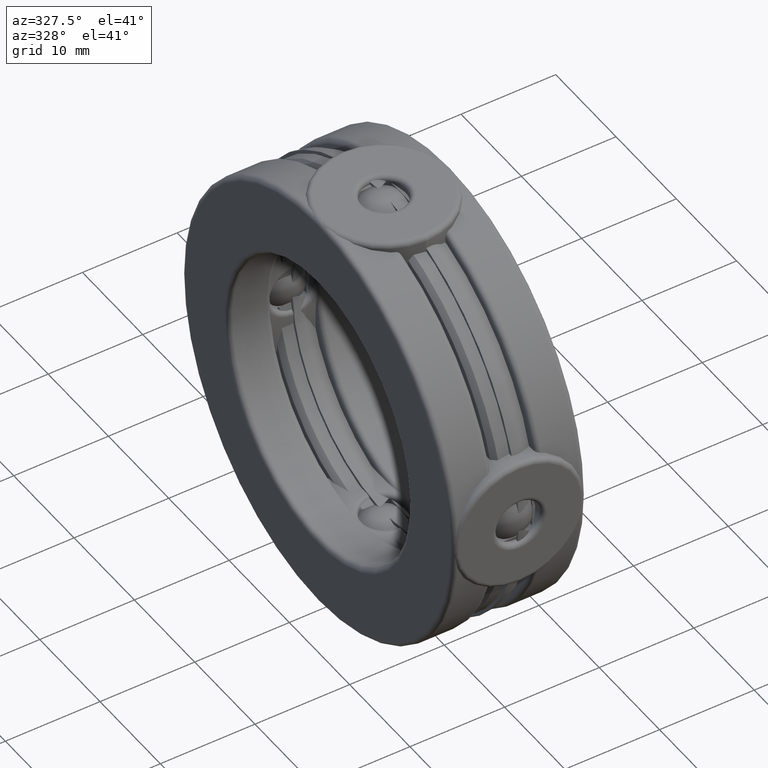
[diagram: clean part render]
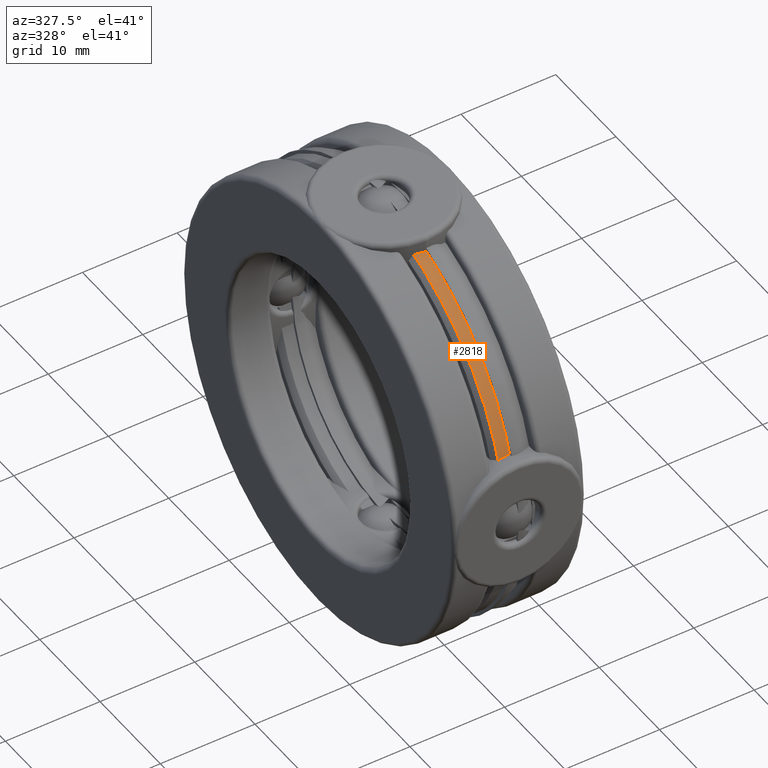
[diagram: same view with one face highlighted and labeled with its STEP entity id]
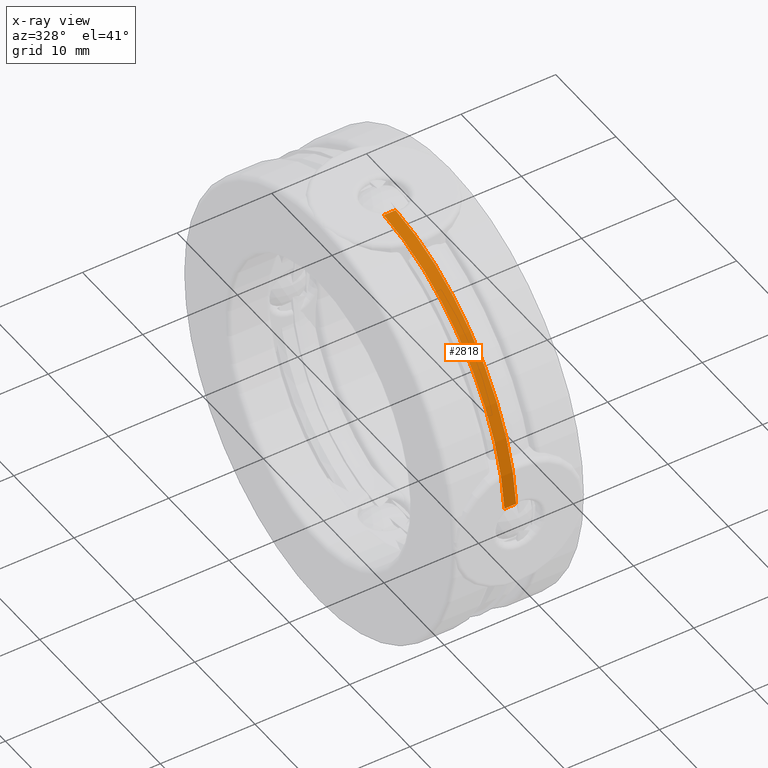
[diagram: x-ray of the same camera — body ghosted, the highlighted face saturated]
A machine part, auxiliary view. The second image highlights one B-rep face of the part: STEP entity #2818.
The next image is the same camera in x-ray: the body ghosted, the highlighted face saturated — about 0% of this face is hidden behind the body in this view.
In plain terms, the highlighted cylindrical surface (partial cylindrical patch) has radius 21.9964 mm, axis along (-1, -0, -0).
Its self-contained STEP definition (entity closure, byte-faithful):
#52 = ORIENTED_EDGE ( 'NONE', *, *, #2527, .T. ) ;
#74 = DIRECTION ( 'NONE',  ( -1.000000000000000000, -0.0000000000000000000, -0.0000000000000000000 ) ) ;
#75 = VECTOR ( 'NONE', #2319, 39.37007874015748100 ) ;
#279 = ORIENTED_EDGE ( 'NONE', *, *, #2850, .F. ) ;
#364 = VERTEX_POINT ( 'NONE', #2963 ) ;
#412 = FACE_OUTER_BOUND ( 'NONE', #1945, .T. ) ;
#415 = CARTESIAN_POINT ( 'NONE',  ( -0.04887500000000001600, 0.0000000000000000000, 0.0000000000000000000 ) ) ;
#421 = CARTESIAN_POINT ( 'NONE',  ( -0.04887500000000001600, -0.8627150778868946100, 0.07535711238237100000 ) ) ;
#536 = CIRCLE ( 'NONE', #668, 0.8659999999999998800 ) ;
#642 = DIRECTION ( 'NONE',  ( -1.000000000000000000, -0.0000000000000000000, -0.0000000000000000000 ) ) ;
#668 = AXIS2_PLACEMENT_3D ( 'NONE', #2162, #1916, #2897 ) ;
#758 = VECTOR ( 'NONE', #2136, 39.37007874015748100 ) ;
#832 = CARTESIAN_POINT ( 'NONE',  ( 0.0000000000000000000, -0.8627150778868946100, 0.07535711238236995900 ) ) ;
#914 = ORIENTED_EDGE ( 'NONE', *, *, #1425, .T. ) ;
#990 = ORIENTED_EDGE ( 'NONE', *, *, #1893, .T. ) ;
#1098 = LINE ( 'NONE', #1910, #758 ) ;
#1338 = CARTESIAN_POINT ( 'NONE',  ( -0.02443750000000000800, -0.07535711238236192400, 0.8627150778868952800 ) ) ;
#1425 = EDGE_CURVE ( 'NONE', #1602, #1877, #1098, .T. ) ;
#1602 = VERTEX_POINT ( 'NONE', #421 ) ;
#1824 = AXIS2_PLACEMENT_3D ( 'NONE', #3134, #642, #2635 ) ;
#1877 = VERTEX_POINT ( 'NONE', #832 ) ;
#1893 = EDGE_CURVE ( 'NONE', #1877, #3086, #536, .T. ) ;
#1910 = CARTESIAN_POINT ( 'NONE',  ( -0.02443750000000000800, -0.8627150778868945000, 0.07535711238237097200 ) ) ;
#1916 = DIRECTION ( 'NONE',  ( -1.000000000000000000, -0.0000000000000000000, -0.0000000000000000000 ) ) ;
#1937 = CARTESIAN_POINT ( 'NONE',  ( 0.0000000000000000000, -0.07535711238236092500, 0.8627150778868955000 ) ) ;
#1945 = EDGE_LOOP ( 'NONE', ( #914, #990, #52, #279 ) ) ;
#2065 = LINE ( 'NONE', #1338, #75 ) ;
#2091 = DIRECTION ( 'NONE',  ( 0.0000000000000000000, 0.0000000000000000000, 1.000000000000000000 ) ) ;
#2136 = DIRECTION ( 'NONE',  ( 1.000000000000000000, -0.0000000000000000000, -0.0000000000000000000 ) ) ;
#2162 = CARTESIAN_POINT ( 'NONE',  ( 0.0000000000000000000, 0.0000000000000000000, 0.0000000000000000000 ) ) ;
#2319 = DIRECTION ( 'NONE',  ( -1.000000000000000000, 0.0000000000000000000, -0.0000000000000000000 ) ) ;
#2527 = EDGE_CURVE ( 'NONE', #3086, #364, #2065, .T. ) ;
#2635 = DIRECTION ( 'NONE',  ( 0.0000000000000000000, 0.0000000000000000000, 1.000000000000000000 ) ) ;
#2670 = CIRCLE ( 'NONE', #2990, 0.8659999999999998800 ) ;
#2818 = ADVANCED_FACE ( 'NONE', ( #412 ), #2836, .T. ) ;
#2836 = CYLINDRICAL_SURFACE ( 'NONE', #1824, 0.8659999999999998800 ) ;
#2850 = EDGE_CURVE ( 'NONE', #1602, #364, #2670, .T. ) ;
#2897 = DIRECTION ( 'NONE',  ( 0.0000000000000000000, 0.0000000000000000000, 1.000000000000000000 ) ) ;
#2963 = CARTESIAN_POINT ( 'NONE',  ( -0.04887500000000001600, -0.07535711238236186800, 0.8627150778868953900 ) ) ;
#2990 = AXIS2_PLACEMENT_3D ( 'NONE', #415, #74, #2091 ) ;
#3086 = VERTEX_POINT ( 'NONE', #1937 ) ;
#3134 = CARTESIAN_POINT ( 'NONE',  ( 0.0000000000000000000, 0.0000000000000000000, 0.0000000000000000000 ) ) ;